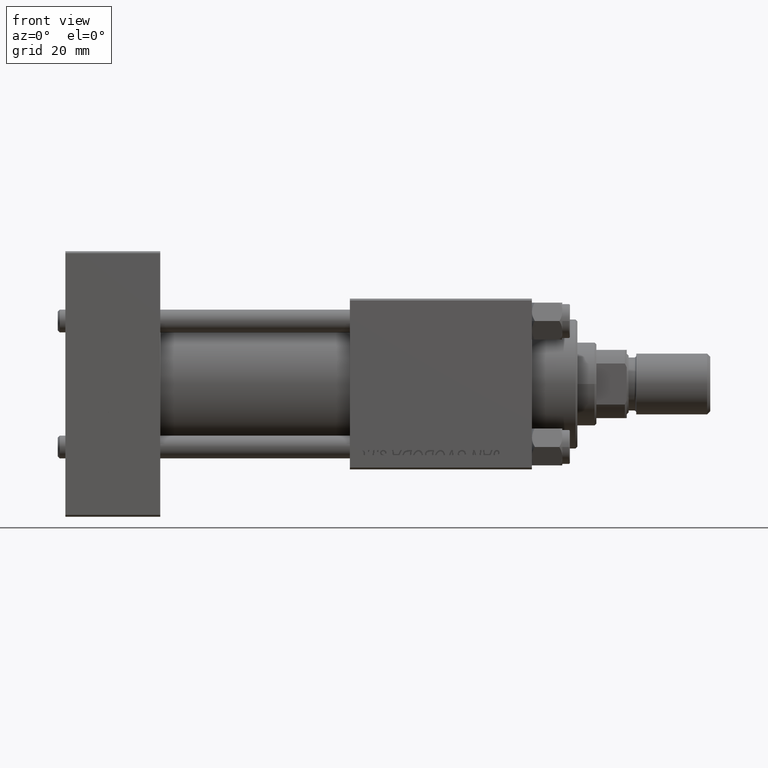
[diagram: clean part render]
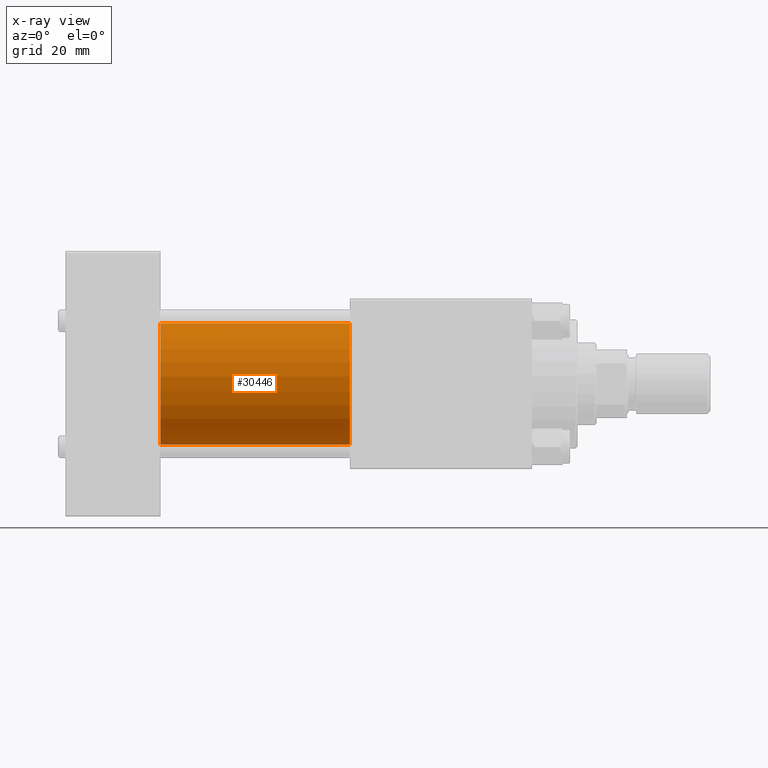
[diagram: x-ray — body ghosted, one internal face saturated and labeled with its STEP entity id]
A machine part, front view, then the same camera in x-ray: the body is ghosted and one INTERNAL B-rep face — a face not visible from any outside direction — is saturated and labeled: STEP entity #30446.
In plain terms, the highlighted cylindrical surface (partial cylindrical patch) has radius 16 mm, axis along (-1, -0, -0).
Its self-contained STEP definition (entity closure, byte-faithful):
#681 = CARTESIAN_POINT ( 'NONE',  ( 75.00000000000001421, -2.602085213965210642E-15, 0.000000000000000000 ) ) ;
#1408 = CARTESIAN_POINT ( 'NONE',  ( 25.00000000000000000, -2.602085213965210642E-15, 0.000000000000000000 ) ) ;
#1668 = DIRECTION ( 'NONE',  ( 1.000000000000000000, 0.000000000000000000, 0.000000000000000000 ) ) ;
#3196 = ORIENTED_EDGE ( 'NONE', *, *, #41818, .T. ) ;
#4882 = ORIENTED_EDGE ( 'NONE', *, *, #8130, .T. ) ;
#4920 = DIRECTION ( 'NONE',  ( 0.000000000000000000, 0.000000000000000000, -1.000000000000000000 ) ) ;
#8130 = EDGE_CURVE ( 'NONE', #49287, #23182, #52047, .T. ) ;
#9499 = CIRCLE ( 'NONE', #34911, 16.00000000000000000 ) ;
#9888 = AXIS2_PLACEMENT_3D ( 'NONE', #13495, #46355, #26191 ) ;
#13495 = CARTESIAN_POINT ( 'NONE',  ( 75.00000000000001421, -2.602085213965210642E-15, 0.000000000000000000 ) ) ;
#14396 = DIRECTION ( 'NONE',  ( 0.000000000000000000, 0.000000000000000000, -1.000000000000000000 ) ) ;
#14685 = CARTESIAN_POINT ( 'NONE',  ( 75.00000000000001421, -6.426503353294456087E-16, -16.00000000000000000 ) ) ;
#15463 = AXIS2_PLACEMENT_3D ( 'NONE', #1408, #1668, #14396 ) ;
#19457 = ORIENTED_EDGE ( 'NONE', *, *, #45757, .F. ) ;
#20223 = VECTOR ( 'NONE', #22639, 1000.000000000000000 ) ;
#22639 = DIRECTION ( 'NONE',  ( -1.000000000000000000, -0.000000000000000000, -0.000000000000000000 ) ) ;
#23182 = VERTEX_POINT ( 'NONE', #48523 ) ;
#25074 = DIRECTION ( 'NONE',  ( 1.000000000000000000, 0.000000000000000000, 0.000000000000000000 ) ) ;
#26191 = DIRECTION ( 'NONE',  ( 0.000000000000000000, 0.000000000000000000, 1.000000000000000000 ) ) ;
#30167 = CYLINDRICAL_SURFACE ( 'NONE', #9888, 16.00000000000000000 ) ;
#30446 = ADVANCED_FACE ( 'NONE', ( #50358 ), #30167, .F. ) ;
#32079 = VECTOR ( 'NONE', #51303, 1000.000000000000000 ) ;
#33714 = EDGE_CURVE ( 'NONE', #46675, #37896, #42532, .T. ) ;
#34911 = AXIS2_PLACEMENT_3D ( 'NONE', #681, #25074, #4920 ) ;
#37896 = VERTEX_POINT ( 'NONE', #39815 ) ;
#38812 = CARTESIAN_POINT ( 'NONE',  ( 75.00000000000001421, -2.602085213965210642E-15, 16.00000000000000000 ) ) ;
#39175 = ORIENTED_EDGE ( 'NONE', *, *, #33714, .F. ) ;
#39742 = EDGE_LOOP ( 'NONE', ( #3196, #4882, #19457, #39175 ) ) ;
#39815 = CARTESIAN_POINT ( 'NONE',  ( 25.00000000000000000, -2.602085213965210642E-15, 16.00000000000000000 ) ) ;
#40618 = CARTESIAN_POINT ( 'NONE',  ( 75.00000000000001421, -2.602085213965210642E-15, 16.00000000000000000 ) ) ;
#41818 = EDGE_CURVE ( 'NONE', #46675, #49287, #9499, .T. ) ;
#42532 = LINE ( 'NONE', #38812, #32079 ) ;
#44898 = CARTESIAN_POINT ( 'NONE',  ( 75.00000000000001421, -6.426503353294456087E-16, -16.00000000000000000 ) ) ;
#45757 = EDGE_CURVE ( 'NONE', #37896, #23182, #48446, .T. ) ;
#46355 = DIRECTION ( 'NONE',  ( -1.000000000000000000, -0.000000000000000000, -0.000000000000000000 ) ) ;
#46675 = VERTEX_POINT ( 'NONE', #40618 ) ;
#48446 = CIRCLE ( 'NONE', #15463, 16.00000000000000000 ) ;
#48523 = CARTESIAN_POINT ( 'NONE',  ( 25.00000000000000000, -6.426503353294456087E-16, -16.00000000000000000 ) ) ;
#49287 = VERTEX_POINT ( 'NONE', #44898 ) ;
#50358 = FACE_OUTER_BOUND ( 'NONE', #39742, .T. ) ;
#51303 = DIRECTION ( 'NONE',  ( -1.000000000000000000, -0.000000000000000000, -0.000000000000000000 ) ) ;
#52047 = LINE ( 'NONE', #14685, #20223 ) ;